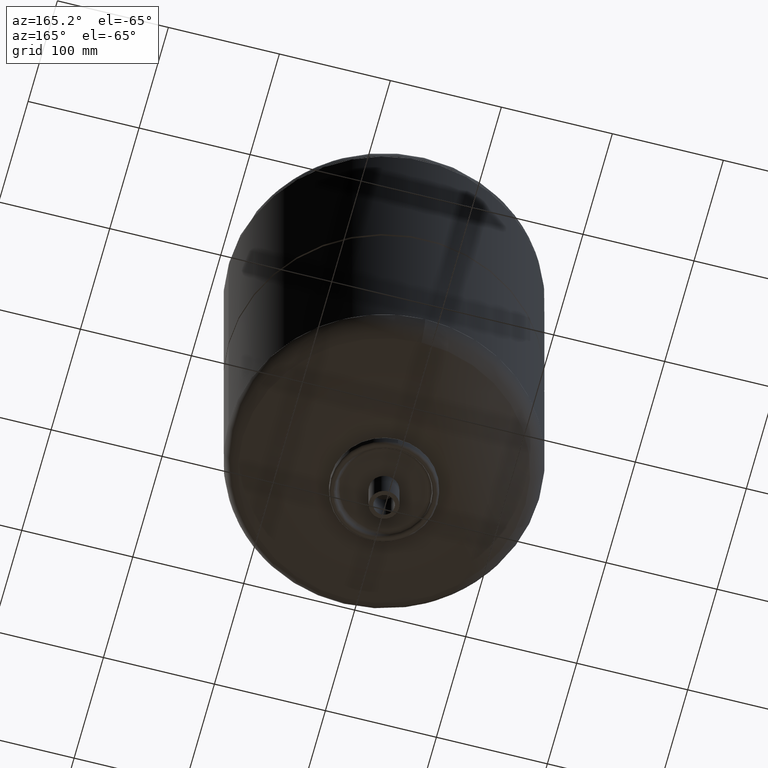
[diagram: clean part render]
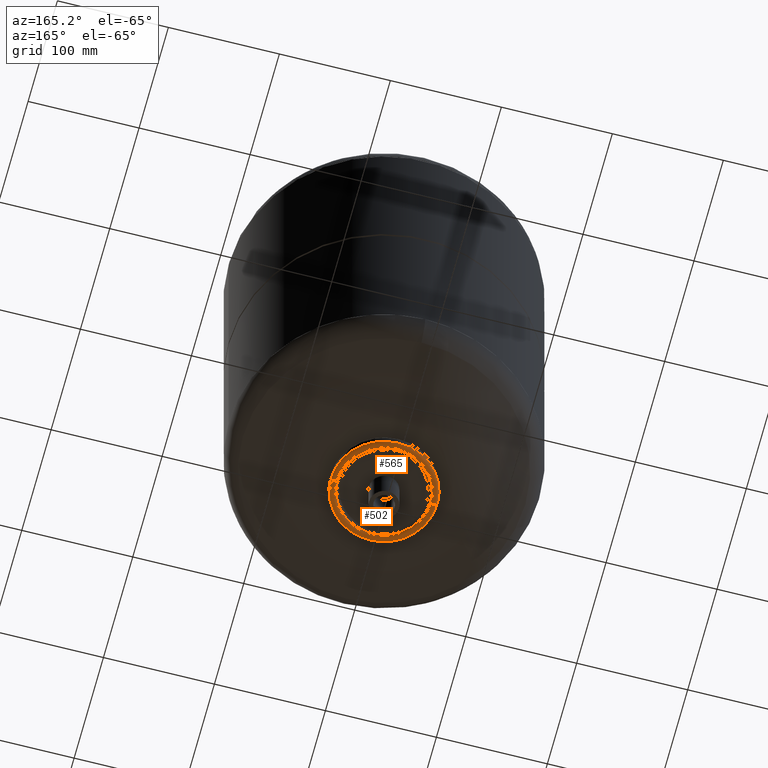
[diagram: same view with one multi-face feature highlighted, each face labeled with its STEP entity id]
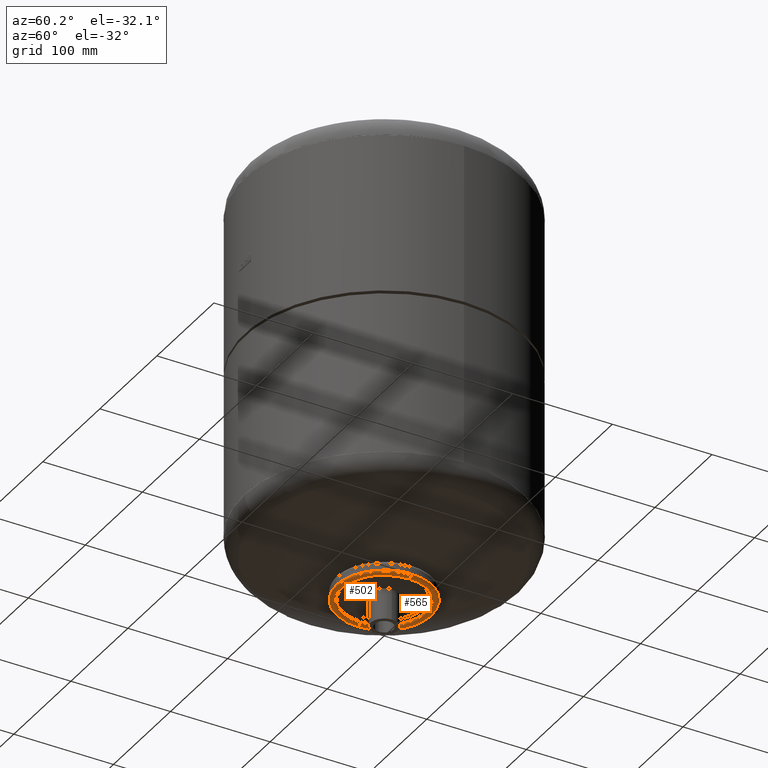
[diagram: same view with one multi-face feature highlighted, each face labeled with its STEP entity id]
A machine part, auxiliary view. The highlighted faces form ONE feature: a constant-radius fillet chain: 2 tangent blend faces with common blend radius 3 mm. The faces share edges in the B-rep.
A second angle (auxiliary view) of the same feature is appended — it is thin or edge-on in the first view.
Their STEP definitions:
[1] entity #565 (Torus):
#130=CARTESIAN_POINT('',(0.0,48.0,27.999999999999993));
#131=VERTEX_POINT('',#130);
#140=CARTESIAN_POINT('',(-48.000000000000007,0.0,28.0));
#141=VERTEX_POINT('',#140);
#142=CARTESIAN_POINT('',(0.0,0.0,28.0));
#143=DIRECTION('',(0.0,0.0,-1.0));
#144=DIRECTION('',(0.0,1.0,0.0));
#145=AXIS2_PLACEMENT_3D('',#142,#143,#144);
#146=CIRCLE('',#145,48.000000000000007);
#147=EDGE_CURVE('',#141,#131,#146,.T.);
#407=CARTESIAN_POINT('',(-42.000000000000014,0.0,28.0));
#408=VERTEX_POINT('',#407);
#418=CARTESIAN_POINT('',(0.0,42.0,27.999999999999996));
#419=VERTEX_POINT('',#418);
#420=CARTESIAN_POINT('',(0.0,0.0,28.0));
#421=DIRECTION('',(0.0,0.0,-1.0));
#422=DIRECTION('',(0.0,1.0,0.0));
#423=AXIS2_PLACEMENT_3D('',#420,#421,#422);
#424=CIRCLE('',#423,42.000000000000014);
#425=EDGE_CURVE('',#408,#419,#424,.T.);
#427=CARTESIAN_POINT('',(42.000000000000014,-5.143347E-015,28.0));
#428=VERTEX_POINT('',#427);
#429=CARTESIAN_POINT('',(0.0,0.0,28.0));
#430=DIRECTION('',(0.0,0.0,-1.0));
#431=DIRECTION('',(0.0,1.0,0.0));
#432=AXIS2_PLACEMENT_3D('',#429,#430,#431);
#433=CIRCLE('',#432,42.000000000000014);
#434=EDGE_CURVE('',#419,#428,#433,.T.);
#469=CARTESIAN_POINT('',(-45.000000000000007,0.0,28.0));
#470=DIRECTION('',(0.0,1.0,0.0));
#471=DIRECTION('',(-1.0,0.0,0.0));
#472=AXIS2_PLACEMENT_3D('',#469,#470,#471);
#473=CIRCLE('',#472,3.000000000000000);
#474=EDGE_CURVE('',#408,#141,#473,.T.);
#483=CARTESIAN_POINT('',(48.000000000000007,-5.878110E-015,28.0));
#484=VERTEX_POINT('',#483);
#485=CARTESIAN_POINT('',(45.000000000000007,-5.510729E-015,28.0));
#486=DIRECTION('',(0.0,-1.0,0.0));
#487=DIRECTION('',(1.0,0.0,0.0));
#488=AXIS2_PLACEMENT_3D('',#485,#486,#487);
#489=CIRCLE('',#488,3.000000000000000);
#490=EDGE_CURVE('',#428,#484,#489,.T.);
#546=CARTESIAN_POINT('',(0.0,0.0,28.0));
#547=DIRECTION('',(0.0,-1.045403E-016,-1.0));
#548=DIRECTION('',(-1.0,0.0,0.0));
#549=AXIS2_PLACEMENT_3D('',#546,#547,#548);
#550=TOROIDAL_SURFACE('',#549,45.000000000000007,3.000000000000000);
#551=ORIENTED_EDGE('',*,*,#474,.T.);
#552=ORIENTED_EDGE('',*,*,#147,.T.);
#553=CARTESIAN_POINT('',(0.0,0.0,28.0));
#554=DIRECTION('',(0.0,0.0,-1.0));
#555=DIRECTION('',(0.0,1.0,0.0));
#556=AXIS2_PLACEMENT_3D('',#553,#554,#555);
#557=CIRCLE('',#556,48.000000000000007);
#558=EDGE_CURVE('',#131,#484,#557,.T.);
#559=ORIENTED_EDGE('',*,*,#558,.T.);
#560=ORIENTED_EDGE('',*,*,#490,.F.);
#561=ORIENTED_EDGE('',*,*,#434,.F.);
#562=ORIENTED_EDGE('',*,*,#425,.F.);
#563=EDGE_LOOP('',(#551,#552,#559,#560,#561,#562));
#564=FACE_OUTER_BOUND('',#563,.T.);
#565=ADVANCED_FACE('',(#564),#550,.T.);
[2] entity #502 (Torus):
#140=CARTESIAN_POINT('',(-48.000000000000007,0.0,28.0));
#141=VERTEX_POINT('',#140);
#149=CARTESIAN_POINT('',(-5.878110E-015,-48.000000000000007,28.0));
#150=VERTEX_POINT('',#149);
#151=CARTESIAN_POINT('',(0.0,0.0,28.0));
#152=DIRECTION('',(0.0,0.0,-1.0));
#153=DIRECTION('',(0.0,1.0,0.0));
#154=AXIS2_PLACEMENT_3D('',#151,#152,#153);
#155=CIRCLE('',#154,48.000000000000007);
#156=EDGE_CURVE('',#150,#141,#155,.T.);
#407=CARTESIAN_POINT('',(-42.000000000000014,0.0,28.0));
#408=VERTEX_POINT('',#407);
#427=CARTESIAN_POINT('',(42.000000000000014,-5.143347E-015,28.0));
#428=VERTEX_POINT('',#427);
#464=CARTESIAN_POINT('',(0.0,0.0,28.0));
#465=DIRECTION('',(0.0,-1.045403E-016,-1.0));
#466=DIRECTION('',(-1.0,0.0,0.0));
#467=AXIS2_PLACEMENT_3D('',#464,#465,#466);
#468=TOROIDAL_SURFACE('',#467,45.000000000000007,3.000000000000000);
#469=CARTESIAN_POINT('',(-45.000000000000007,0.0,28.0));
#470=DIRECTION('',(0.0,1.0,0.0));
#471=DIRECTION('',(-1.0,0.0,0.0));
#472=AXIS2_PLACEMENT_3D('',#469,#470,#471);
#473=CIRCLE('',#472,3.000000000000000);
#474=EDGE_CURVE('',#408,#141,#473,.T.);
#475=ORIENTED_EDGE('',*,*,#474,.F.);
#476=CARTESIAN_POINT('',(0.0,0.0,28.0));
#477=DIRECTION('',(0.0,0.0,-1.0));
#478=DIRECTION('',(0.0,1.0,0.0));
#479=AXIS2_PLACEMENT_3D('',#476,#477,#478);
#480=CIRCLE('',#479,42.000000000000014);
#481=EDGE_CURVE('',#428,#408,#480,.T.);
#482=ORIENTED_EDGE('',*,*,#481,.F.);
#483=CARTESIAN_POINT('',(48.000000000000007,-5.878110E-015,28.0));
#484=VERTEX_POINT('',#483);
#485=CARTESIAN_POINT('',(45.000000000000007,-5.510729E-015,28.0));
#486=DIRECTION('',(0.0,-1.0,0.0));
#487=DIRECTION('',(1.0,0.0,0.0));
#488=AXIS2_PLACEMENT_3D('',#485,#486,#487);
#489=CIRCLE('',#488,3.000000000000000);
#490=EDGE_CURVE('',#428,#484,#489,.T.);
#491=ORIENTED_EDGE('',*,*,#490,.T.);
#492=CARTESIAN_POINT('',(0.0,0.0,28.0));
#493=DIRECTION('',(0.0,0.0,-1.0));
#494=DIRECTION('',(0.0,1.0,0.0));
#495=AXIS2_PLACEMENT_3D('',#492,#493,#494);
#496=CIRCLE('',#495,48.000000000000007);
#497=EDGE_CURVE('',#484,#150,#496,.T.);
#498=ORIENTED_EDGE('',*,*,#497,.T.);
#499=ORIENTED_EDGE('',*,*,#156,.T.);
#500=EDGE_LOOP('',(#475,#482,#491,#498,#499));
#501=FACE_OUTER_BOUND('',#500,.T.);
#502=ADVANCED_FACE('',(#501),#468,.T.);